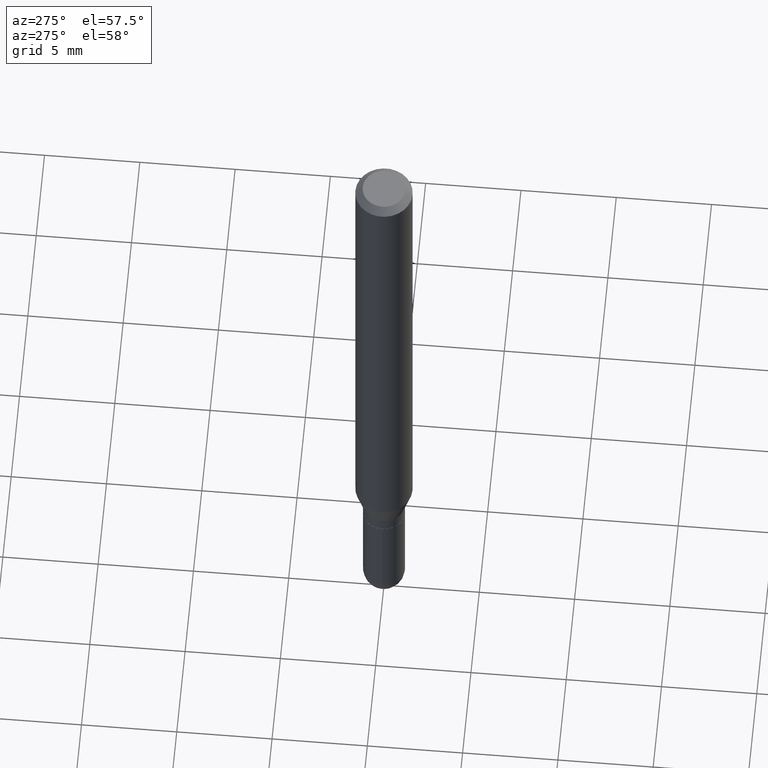
[diagram: clean part render]
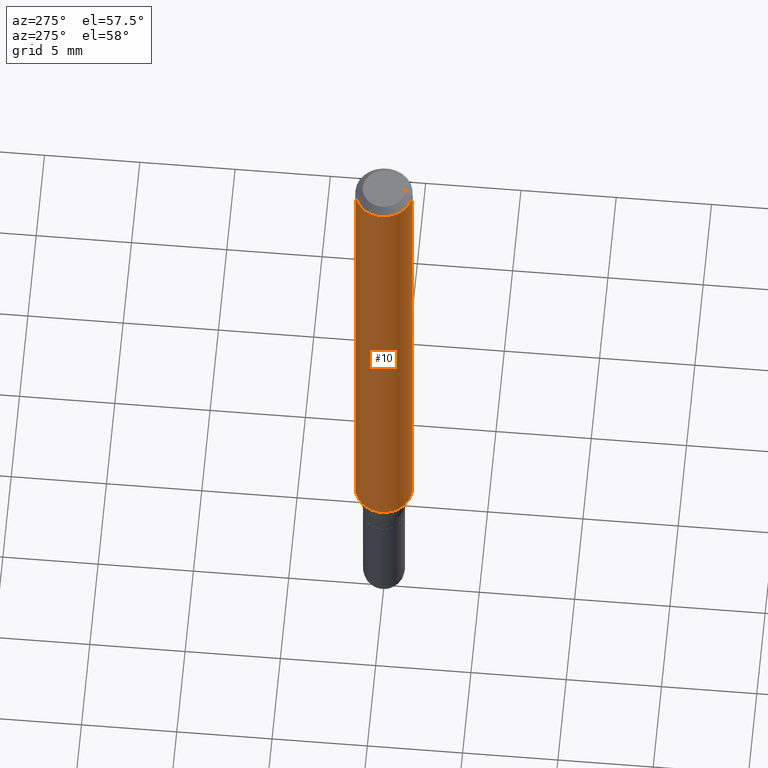
[diagram: same view with one face highlighted and labeled with its STEP entity id]
A machine part, auxiliary view. The second image highlights one B-rep face of the part: STEP entity #10.
In plain terms, the highlighted cylindrical surface (edge-blend (fillet) strip) has radius 1.4999 mm, axis along (-0, 0, 1).
Its self-contained STEP definition (entity closure, byte-faithful):
#2 = VERTEX_POINT ( 'NONE', #510 ) ;
#10 = ADVANCED_FACE ( 'NONE', ( #335 ), #438, .T. ) ;
#26 = CIRCLE ( 'NONE', #423, 0.05904999999999999832 ) ;
#33 = LINE ( 'NONE', #354, #40 ) ;
#40 = VECTOR ( 'NONE', #505, 39.37007874015748143 ) ;
#42 = EDGE_CURVE ( 'NONE', #2, #233, #26, .T. ) ;
#57 = ORIENTED_EDGE ( 'NONE', *, *, #289, .F. ) ;
#63 = ORIENTED_EDGE ( 'NONE', *, *, #42, .T. ) ;
#67 = DIRECTION ( 'NONE',  ( -6.982962677686265922E-15, -1.000000000000000000, 4.626330217890369336E-15 ) ) ;
#68 = CARTESIAN_POINT ( 'NONE',  ( 4.195754854663673989E-16, 0.05904999999999994975, -0.01500000000000023016 ) ) ;
#81 = EDGE_LOOP ( 'NONE', ( #228, #63, #389, #57 ) ) ;
#86 = CARTESIAN_POINT ( 'NONE',  ( -4.123439461173459788E-16, -0.05905000000000400207, -1.147320199780789585 ) ) ;
#105 = CARTESIAN_POINT ( 'NONE',  ( 2.805741960223202757E-29, -4.005838187094525059E-15, -1.147320199780789807 ) ) ;
#124 = VECTOR ( 'NONE', #324, 39.37007874015748143 ) ;
#142 = DIRECTION ( 'NONE',  ( -2.445474210912764340E-29, 3.491473598965564778E-15, 1.000000000000000000 ) ) ;
#167 = LINE ( 'NONE', #387, #124 ) ;
#183 = VERTEX_POINT ( 'NONE', #428 ) ;
#191 = CARTESIAN_POINT ( 'NONE',  ( 0.000000000000000000, 0.000000000000000000, 0.000000000000000000 ) ) ;
#228 = ORIENTED_EDGE ( 'NONE', *, *, #512, .F. ) ;
#233 = VERTEX_POINT ( 'NONE', #86 ) ;
#289 = EDGE_CURVE ( 'NONE', #502, #183, #299, .T. ) ;
#299 = CIRCLE ( 'NONE', #365, 0.05904999999999999832 ) ;
#300 = DIRECTION ( 'NONE',  ( -6.982962677686265922E-15, -1.000000000000000000, 3.491473598965564778E-15 ) ) ;
#305 = DIRECTION ( 'NONE',  ( -2.445474210912764340E-29, 3.491473598965564778E-15, 1.000000000000000000 ) ) ;
#324 = DIRECTION ( 'NONE',  ( -2.445474210912764340E-29, 3.491473598965565172E-15, 1.000000000000000000 ) ) ;
#332 = CARTESIAN_POINT ( 'NONE',  ( 3.668211316369151799E-31, -5.237210398448355894E-17, -0.01500000000000002373 ) ) ;
#335 = FACE_OUTER_BOUND ( 'NONE', #81, .T. ) ;
#354 = CARTESIAN_POINT ( 'NONE',  ( 4.195754854663390985E-16, 0.05904999999999999832, -2.061715160189165873E-16 ) ) ;
#365 = AXIS2_PLACEMENT_3D ( 'NONE', #332, #142, #461 ) ;
#387 = CARTESIAN_POINT ( 'NONE',  ( -4.123439461173739834E-16, -0.05904999999999999832, 2.061715160189165873E-16 ) ) ;
#389 = ORIENTED_EDGE ( 'NONE', *, *, #483, .T. ) ;
#414 = DIRECTION ( 'NONE',  ( -2.445474210912764340E-29, 3.491473598965564778E-15, 1.000000000000000000 ) ) ;
#423 = AXIS2_PLACEMENT_3D ( 'NONE', #105, #414, #67 ) ;
#428 = CARTESIAN_POINT ( 'NONE',  ( -4.123439461173736383E-16, -0.05905000000000005383, -0.01499999999999981730 ) ) ;
#438 = CYLINDRICAL_SURFACE ( 'NONE', #477, 0.05904999999999999832 ) ;
#461 = DIRECTION ( 'NONE',  ( -6.982962677686265922E-15, -1.000000000000000000, 3.505890868245046092E-15 ) ) ;
#477 = AXIS2_PLACEMENT_3D ( 'NONE', #191, #305, #300 ) ;
#483 = EDGE_CURVE ( 'NONE', #233, #183, #167, .T. ) ;
#502 = VERTEX_POINT ( 'NONE', #68 ) ;
#505 = DIRECTION ( 'NONE',  ( -2.445474210912764340E-29, 3.491473598965565172E-15, 1.000000000000000000 ) ) ;
#510 = CARTESIAN_POINT ( 'NONE',  ( 4.195754854663670538E-16, 0.05904999999999599458, -1.147320199780790029 ) ) ;
#512 = EDGE_CURVE ( 'NONE', #2, #502, #33, .T. ) ;